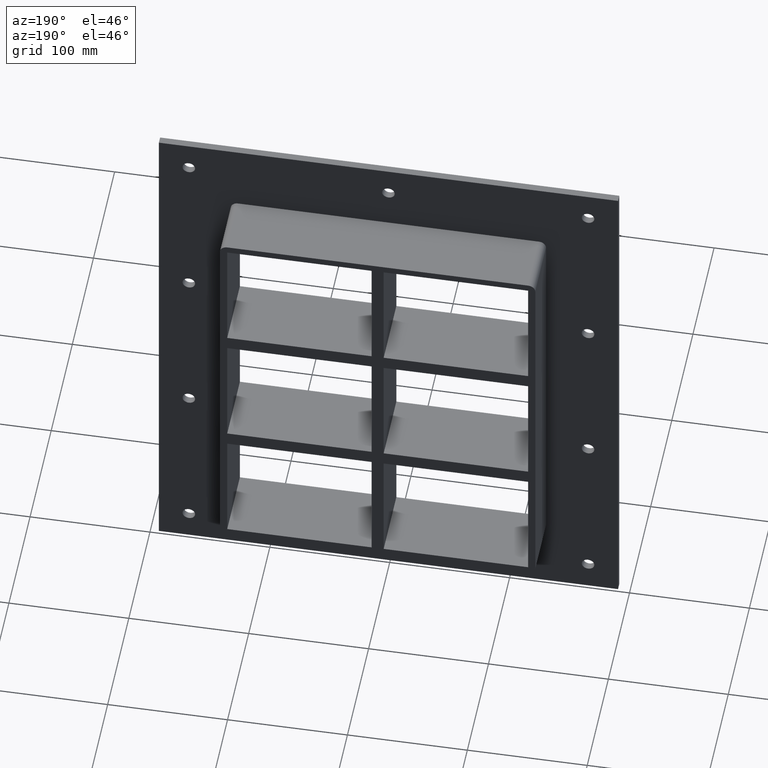
[diagram: clean part render]
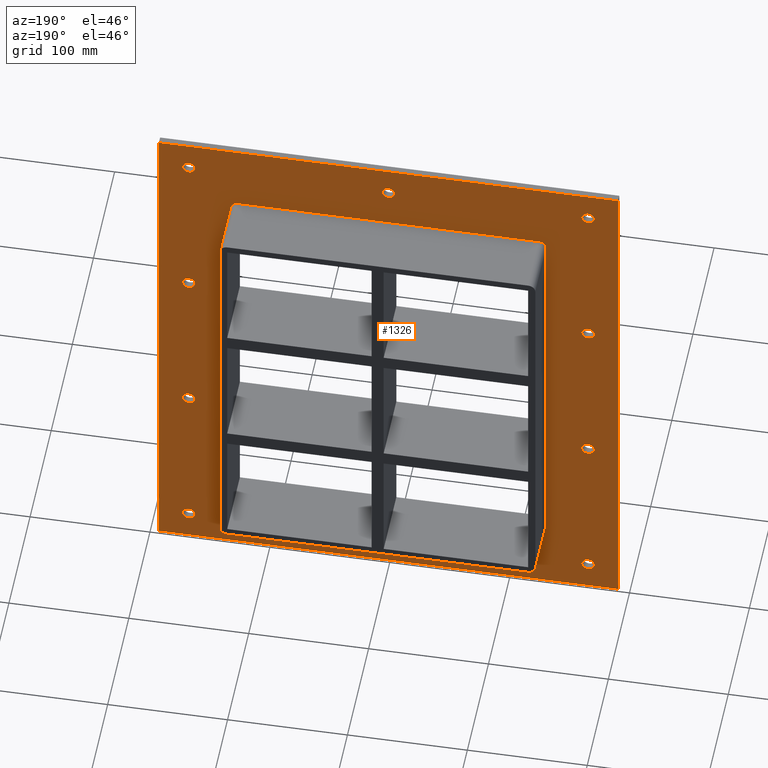
[diagram: same view with one face highlighted and labeled with its STEP entity id]
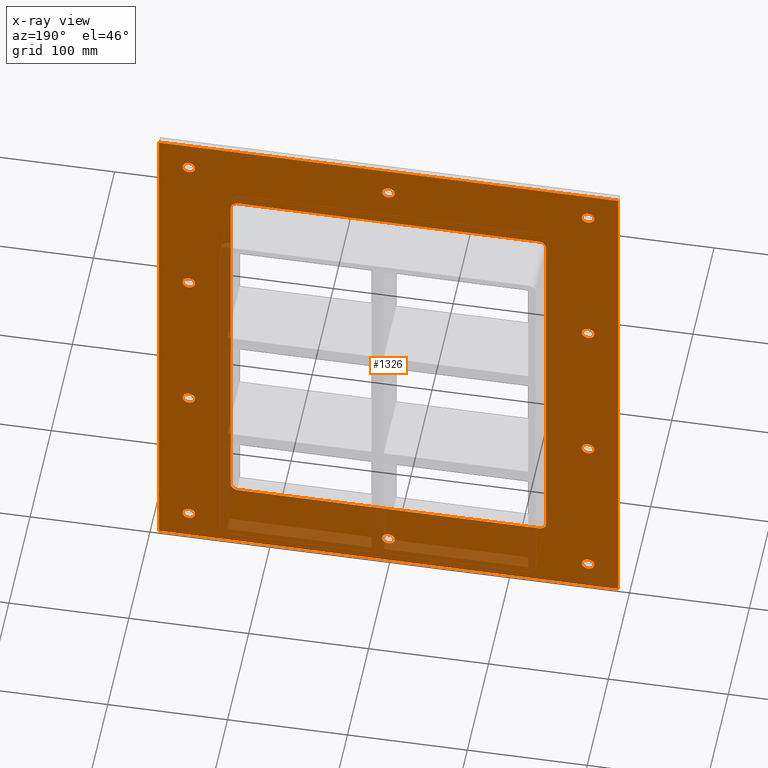
[diagram: x-ray of the same camera — body ghosted, the highlighted face saturated]
A machine part, auxiliary view. The second image highlights one B-rep face of the part: STEP entity #1326.
The next image is the same camera in x-ray: the body ghosted, the highlighted face saturated — about 9% of this face is hidden behind the body in this view.
In plain terms, the highlighted planar face has unit normal (0, 1, 0).
Its self-contained STEP definition (entity closure, byte-faithful):
#73=CARTESIAN_POINT('',(-171.75000000000017,6.000000000000014,-204.5));
#74=VERTEX_POINT('',#73);
#75=CARTESIAN_POINT('',(-166.5000000000002,6.000000000000014,-204.5));
#76=DIRECTION('',(0.0,-1.0,0.0));
#77=DIRECTION('',(1.0,0.0,0.0));
#78=AXIS2_PLACEMENT_3D('',#75,#76,#77);
#79=CIRCLE('',#78,5.25);
#80=EDGE_CURVE('',#74,#74,#79,.T.);
#101=CARTESIAN_POINT('',(161.24999999999986,6.000000000000014,-68.19999999999996));
#102=VERTEX_POINT('',#101);
#103=CARTESIAN_POINT('',(166.49999999999983,6.000000000000014,-68.19999999999996));
#104=DIRECTION('',(0.0,-1.0,0.0));
#105=DIRECTION('',(1.0,0.0,0.0));
#106=AXIS2_PLACEMENT_3D('',#103,#104,#105);
#107=CIRCLE('',#106,5.25);
#108=EDGE_CURVE('',#102,#102,#107,.T.);
#129=CARTESIAN_POINT('',(-171.75000000000017,6.000000000000014,-68.19999999999996));
#130=VERTEX_POINT('',#129);
#131=CARTESIAN_POINT('',(-166.5000000000002,6.000000000000014,-68.19999999999996));
#132=DIRECTION('',(0.0,-1.0,0.0));
#133=DIRECTION('',(1.0,0.0,0.0));
#134=AXIS2_PLACEMENT_3D('',#131,#132,#133);
#135=CIRCLE('',#134,5.25);
#136=EDGE_CURVE('',#130,#130,#135,.T.);
#157=CARTESIAN_POINT('',(161.24999999999986,6.000000000000014,68.100000000000051));
#158=VERTEX_POINT('',#157);
#159=CARTESIAN_POINT('',(166.49999999999983,6.000000000000014,68.100000000000051));
#160=DIRECTION('',(0.0,-1.0,0.0));
#161=DIRECTION('',(1.0,0.0,0.0));
#162=AXIS2_PLACEMENT_3D('',#159,#160,#161);
#163=CIRCLE('',#162,5.25);
#164=EDGE_CURVE('',#158,#158,#163,.T.);
#185=CARTESIAN_POINT('',(-171.75000000000017,6.000000000000014,68.100000000000051));
#186=VERTEX_POINT('',#185);
#187=CARTESIAN_POINT('',(-166.5000000000002,6.000000000000014,68.100000000000051));
#188=DIRECTION('',(0.0,-1.0,0.0));
#189=DIRECTION('',(1.0,0.0,0.0));
#190=AXIS2_PLACEMENT_3D('',#187,#188,#189);
#191=CIRCLE('',#190,5.25);
#192=EDGE_CURVE('',#186,#186,#191,.T.);
#213=CARTESIAN_POINT('',(-5.250000000000163,6.000000000000014,204.40000000000009));
#214=VERTEX_POINT('',#213);
#215=CARTESIAN_POINT('',(-1.776357E-013,6.000000000000014,204.40000000000009));
#216=DIRECTION('',(0.0,-1.0,0.0));
#217=DIRECTION('',(1.0,0.0,0.0));
#218=AXIS2_PLACEMENT_3D('',#215,#216,#217);
#219=CIRCLE('',#218,5.25);
#220=EDGE_CURVE('',#214,#214,#219,.T.);
#241=CARTESIAN_POINT('',(-5.250000000000163,6.000000000000014,-204.5));
#242=VERTEX_POINT('',#241);
#243=CARTESIAN_POINT('',(-1.776357E-013,6.000000000000014,-204.5));
#244=DIRECTION('',(0.0,-1.0,0.0));
#245=DIRECTION('',(1.0,0.0,0.0));
#246=AXIS2_PLACEMENT_3D('',#243,#244,#245);
#247=CIRCLE('',#246,5.25);
#248=EDGE_CURVE('',#242,#242,#247,.T.);
#269=CARTESIAN_POINT('',(161.24999999999986,6.000000000000014,-204.5));
#270=VERTEX_POINT('',#269);
#271=CARTESIAN_POINT('',(166.49999999999983,6.000000000000014,-204.5));
#272=DIRECTION('',(0.0,-1.0,0.0));
#273=DIRECTION('',(1.0,0.0,0.0));
#274=AXIS2_PLACEMENT_3D('',#271,#272,#273);
#275=CIRCLE('',#274,5.25);
#276=EDGE_CURVE('',#270,#270,#275,.T.);
#297=CARTESIAN_POINT('',(-171.75000000000017,6.000000000000014,204.40000000000009));
#298=VERTEX_POINT('',#297);
#299=CARTESIAN_POINT('',(-166.5000000000002,6.000000000000014,204.40000000000009));
#300=DIRECTION('',(0.0,-1.0,0.0));
#301=DIRECTION('',(1.0,0.0,0.0));
#302=AXIS2_PLACEMENT_3D('',#299,#300,#301);
#303=CIRCLE('',#302,5.25);
#304=EDGE_CURVE('',#298,#298,#303,.T.);
#325=CARTESIAN_POINT('',(161.24999999999986,6.000000000000014,204.40000000000009));
#326=VERTEX_POINT('',#325);
#327=CARTESIAN_POINT('',(166.49999999999983,6.000000000000014,204.40000000000009));
#328=DIRECTION('',(0.0,-1.0,0.0));
#329=DIRECTION('',(1.0,0.0,0.0));
#330=AXIS2_PLACEMENT_3D('',#327,#328,#329);
#331=CIRCLE('',#330,5.25);
#332=EDGE_CURVE('',#326,#326,#331,.T.);
#1187=CARTESIAN_POINT('',(-2.025300E-014,6.000000000000001,1.980997E-014));
#1188=DIRECTION('',(0.0,1.0,0.0));
#1189=DIRECTION('',(0.0,0.0,1.0));
#1190=AXIS2_PLACEMENT_3D('',#1187,#1188,#1189);
#1191=PLANE('',#1190);
#1192=CARTESIAN_POINT('',(-191.50000000000006,6.000000000000001,229.50000000000003));
#1193=VERTEX_POINT('',#1192);
#1194=CARTESIAN_POINT('',(191.50000000000006,6.000000000000001,229.50000000000003));
#1195=VERTEX_POINT('',#1194);
#1196=CARTESIAN_POINT('',(-191.50000000000006,6.000000000000001,229.50000000000003));
#1197=DIRECTION('',(1.0,0.0,0.0));
#1198=VECTOR('',#1197,383.00000000000011);
#1199=LINE('',#1196,#1198);
#1200=EDGE_CURVE('',#1193,#1195,#1199,.T.);
#1201=ORIENTED_EDGE('',*,*,#1200,.T.);
#1202=CARTESIAN_POINT('',(191.50000000000006,6.000000000000001,-229.50000000000003));
#1203=VERTEX_POINT('',#1202);
#1204=CARTESIAN_POINT('',(191.50000000000003,6.000000000000001,229.50000000000003));
#1205=DIRECTION('',(0.0,0.0,-1.0));
#1206=VECTOR('',#1205,459.00000000000006);
#1207=LINE('',#1204,#1206);
#1208=EDGE_CURVE('',#1195,#1203,#1207,.T.);
#1209=ORIENTED_EDGE('',*,*,#1208,.T.);
#1210=CARTESIAN_POINT('',(-191.50000000000006,6.000000000000001,-229.50000000000003));
#1211=VERTEX_POINT('',#1210);
#1212=CARTESIAN_POINT('',(191.50000000000003,6.000000000000001,-229.5));
#1213=DIRECTION('',(-1.0,0.0,0.0));
#1214=VECTOR('',#1213,383.00000000000011);
#1215=LINE('',#1212,#1214);
#1216=EDGE_CURVE('',#1203,#1211,#1215,.T.);
#1217=ORIENTED_EDGE('',*,*,#1216,.T.);
#1218=CARTESIAN_POINT('',(-191.50000000000006,6.000000000000001,-229.5));
#1219=DIRECTION('',(0.0,0.0,1.0));
#1220=VECTOR('',#1219,459.00000000000006);
#1221=LINE('',#1218,#1220);
#1222=EDGE_CURVE('',#1211,#1193,#1221,.T.);
#1223=ORIENTED_EDGE('',*,*,#1222,.T.);
#1224=EDGE_LOOP('',(#1201,#1209,#1217,#1223));
#1225=FACE_OUTER_BOUND('',#1224,.T.);
#1226=ORIENTED_EDGE('',*,*,#80,.T.);
#1227=EDGE_LOOP('',(#1226));
#1228=FACE_BOUND('',#1227,.T.);
#1229=ORIENTED_EDGE('',*,*,#108,.T.);
#1230=EDGE_LOOP('',(#1229));
#1231=FACE_BOUND('',#1230,.T.);
#1232=ORIENTED_EDGE('',*,*,#136,.T.);
#1233=EDGE_LOOP('',(#1232));
#1234=FACE_BOUND('',#1233,.T.);
#1235=ORIENTED_EDGE('',*,*,#164,.T.);
#1236=EDGE_LOOP('',(#1235));
#1237=FACE_BOUND('',#1236,.T.);
#1238=ORIENTED_EDGE('',*,*,#192,.T.);
#1239=EDGE_LOOP('',(#1238));
#1240=FACE_BOUND('',#1239,.T.);
#1241=ORIENTED_EDGE('',*,*,#220,.T.);
#1242=EDGE_LOOP('',(#1241));
#1243=FACE_BOUND('',#1242,.T.);
#1244=ORIENTED_EDGE('',*,*,#248,.T.);
#1245=EDGE_LOOP('',(#1244));
#1246=FACE_BOUND('',#1245,.T.);
#1247=ORIENTED_EDGE('',*,*,#276,.T.);
#1248=EDGE_LOOP('',(#1247));
#1249=FACE_BOUND('',#1248,.T.);
#1250=ORIENTED_EDGE('',*,*,#304,.T.);
#1251=EDGE_LOOP('',(#1250));
#1252=FACE_BOUND('',#1251,.T.);
#1253=ORIENTED_EDGE('',*,*,#332,.T.);
#1254=EDGE_LOOP('',(#1253));
#1255=FACE_BOUND('',#1254,.T.);
#1256=CARTESIAN_POINT('',(-125.49999999999997,6.000000000000001,-169.50000000000003));
#1257=VERTEX_POINT('',#1256);
#1258=CARTESIAN_POINT('',(-131.5,6.000000000000001,-163.5));
#1259=VERTEX_POINT('',#1258);
#1260=CARTESIAN_POINT('',(-125.49999999999997,6.000000000000001,-163.5));
#1261=DIRECTION('',(0.0,1.0,0.0));
#1262=DIRECTION('',(-0.707106781186548,0.0,-0.707106781186548));
#1263=AXIS2_PLACEMENT_3D('',#1260,#1261,#1262);
#1264=CIRCLE('',#1263,6.000000000000002);
#1265=EDGE_CURVE('',#1257,#1259,#1264,.T.);
#1266=ORIENTED_EDGE('',*,*,#1265,.F.);
#1267=CARTESIAN_POINT('',(125.49999999999997,6.000000000000001,-169.50000000000003));
#1268=VERTEX_POINT('',#1267);
#1269=CARTESIAN_POINT('',(125.49999999999997,6.000000000000001,-169.50000000000003));
#1270=DIRECTION('',(-1.0,0.0,0.0));
#1271=VECTOR('',#1270,250.99999999999994);
#1272=LINE('',#1269,#1271);
#1273=EDGE_CURVE('',#1268,#1257,#1272,.T.);
#1274=ORIENTED_EDGE('',*,*,#1273,.F.);
#1275=CARTESIAN_POINT('',(131.5,6.000000000000001,-163.5));
#1276=VERTEX_POINT('',#1275);
#1277=CARTESIAN_POINT('',(125.49999999999997,6.000000000000001,-163.5));
#1278=DIRECTION('',(0.0,1.0,0.0));
#1279=DIRECTION('',(0.707106781186548,0.0,-0.707106781186548));
#1280=AXIS2_PLACEMENT_3D('',#1277,#1278,#1279);
#1281=CIRCLE('',#1280,6.000000000000002);
#1282=EDGE_CURVE('',#1276,#1268,#1281,.T.);
#1283=ORIENTED_EDGE('',*,*,#1282,.F.);
#1284=CARTESIAN_POINT('',(131.5,6.000000000000001,163.5));
#1285=VERTEX_POINT('',#1284);
#1286=CARTESIAN_POINT('',(131.5,6.000000000000001,163.5));
#1287=DIRECTION('',(0.0,0.0,-1.0));
#1288=VECTOR('',#1287,327.0);
#1289=LINE('',#1286,#1288);
#1290=EDGE_CURVE('',#1285,#1276,#1289,.T.);
#1291=ORIENTED_EDGE('',*,*,#1290,.F.);
#1292=CARTESIAN_POINT('',(125.49999999999997,6.000000000000001,169.50000000000003));
#1293=VERTEX_POINT('',#1292);
#1294=CARTESIAN_POINT('',(125.49999999999997,6.000000000000001,163.5));
#1295=DIRECTION('',(0.0,1.0,0.0));
#1296=DIRECTION('',(0.707106781186548,0.0,0.707106781186548));
#1297=AXIS2_PLACEMENT_3D('',#1294,#1295,#1296);
#1298=CIRCLE('',#1297,6.000000000000002);
#1299=EDGE_CURVE('',#1293,#1285,#1298,.T.);
#1300=ORIENTED_EDGE('',*,*,#1299,.F.);
#1301=CARTESIAN_POINT('',(-125.49999999999997,6.000000000000001,169.50000000000003));
#1302=VERTEX_POINT('',#1301);
#1303=CARTESIAN_POINT('',(-125.49999999999997,6.000000000000001,169.50000000000003));
#1304=DIRECTION('',(1.0,0.0,0.0));
#1305=VECTOR('',#1304,250.99999999999994);
#1306=LINE('',#1303,#1305);
#1307=EDGE_CURVE('',#1302,#1293,#1306,.T.);
#1308=ORIENTED_EDGE('',*,*,#1307,.F.);
#1309=CARTESIAN_POINT('',(-131.5,6.000000000000001,163.5));
#1310=VERTEX_POINT('',#1309);
#1311=CARTESIAN_POINT('',(-125.49999999999997,6.000000000000001,163.5));
#1312=DIRECTION('',(0.0,1.0,0.0));
#1313=DIRECTION('',(-0.707106781186548,0.0,0.707106781186548));
#1314=AXIS2_PLACEMENT_3D('',#1311,#1312,#1313);
#1315=CIRCLE('',#1314,6.000000000000002);
#1316=EDGE_CURVE('',#1310,#1302,#1315,.T.);
#1317=ORIENTED_EDGE('',*,*,#1316,.F.);
#1318=CARTESIAN_POINT('',(-131.5,6.000000000000001,-163.5));
#1319=DIRECTION('',(0.0,0.0,1.0));
#1320=VECTOR('',#1319,327.0);
#1321=LINE('',#1318,#1320);
#1322=EDGE_CURVE('',#1259,#1310,#1321,.T.);
#1323=ORIENTED_EDGE('',*,*,#1322,.F.);
#1324=EDGE_LOOP('',(#1266,#1274,#1283,#1291,#1300,#1308,#1317,#1323));
#1325=FACE_BOUND('',#1324,.T.);
#1326=ADVANCED_FACE('',(#1225,#1228,#1231,#1234,#1237,#1240,#1243,#1246,#1249,#1252,#1255,#1325),#1191,.T.);